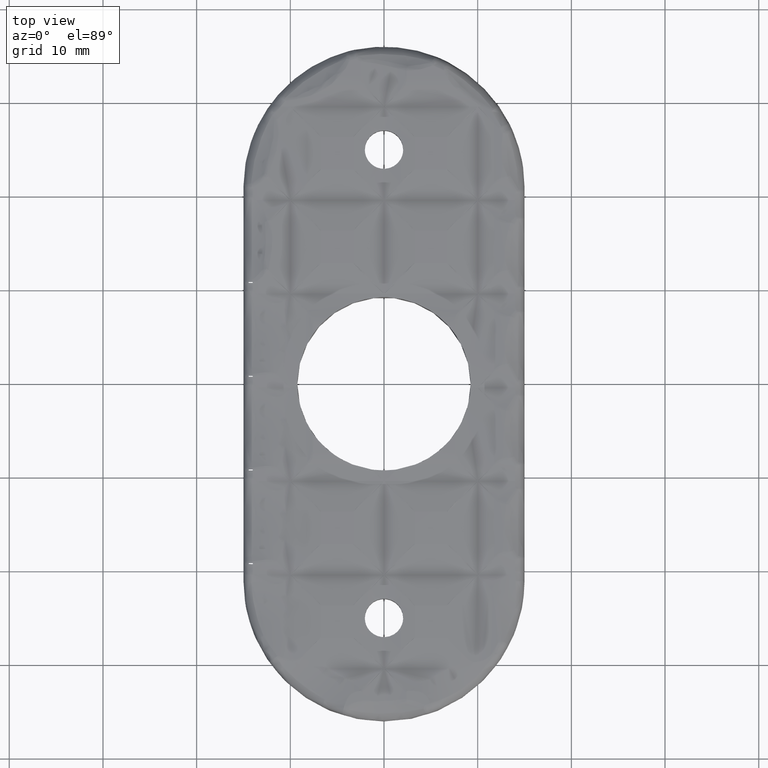
[diagram: clean part render]
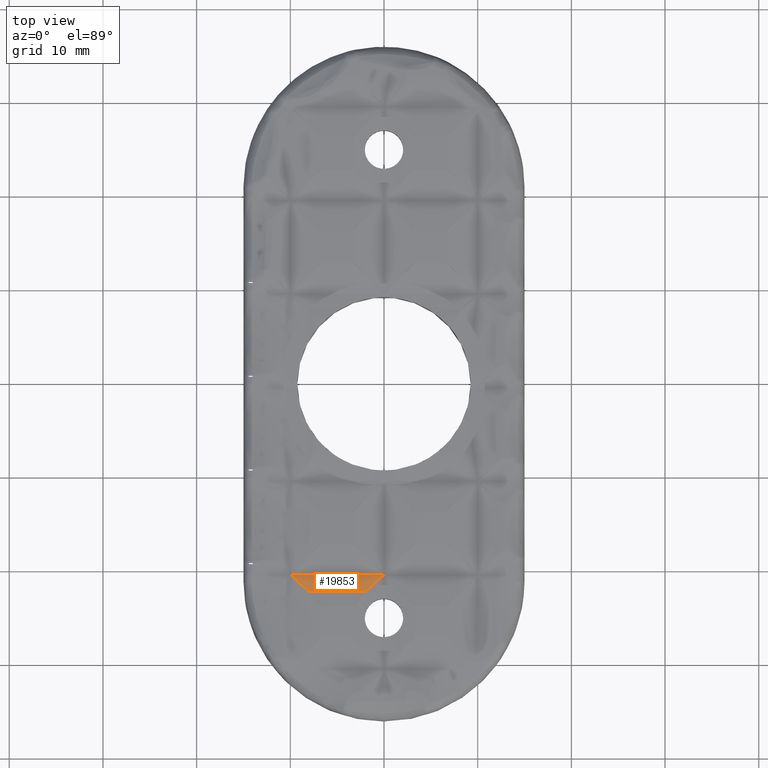
[diagram: same view with one face highlighted and labeled with its STEP entity id]
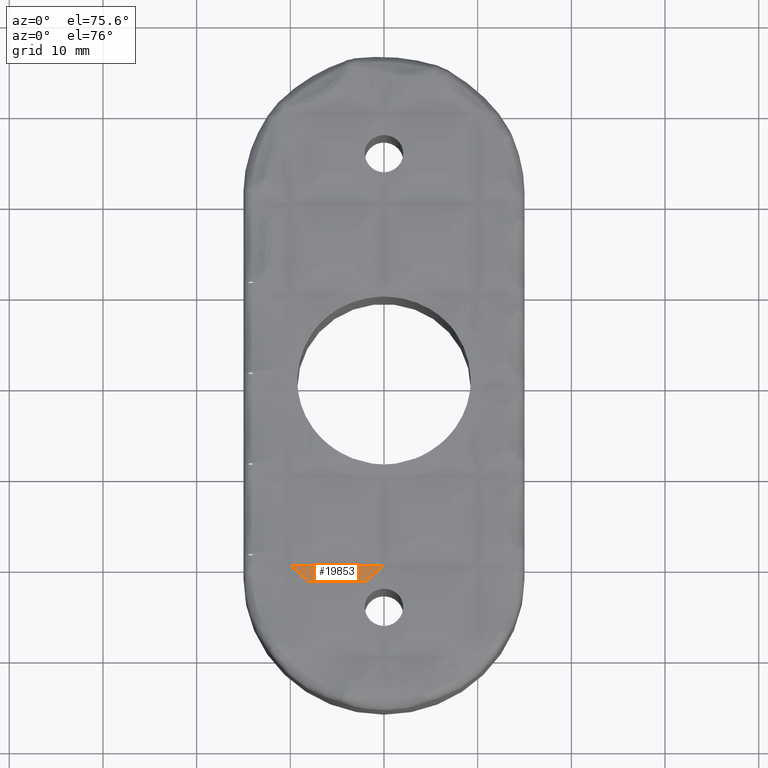
[diagram: same view with one face highlighted and labeled with its STEP entity id]
A machine part, top view. The second image highlights one B-rep face of the part: STEP entity #19853.
A second angle (auxiliary view) of the same face is appended — the face is thin or edge-on in the first view.
In plain terms, the highlighted cylindrical surface (partial cylindrical patch) has radius 11.5625 mm, axis along (1, 0, 0).
Its self-contained STEP definition (entity closure, byte-faithful):
#156 = CARTESIAN_POINT ( 'NONE',  ( -10.00000000000000200, -20.38319608347029500, 3.250000000000002700 ) ) ;
#276 = ORIENTED_EDGE ( 'NONE', *, *, #13982, .F. ) ;
#1016 = EDGE_CURVE ( 'NONE', #10838, #26638, #6061, .T. ) ;
#1047 = CARTESIAN_POINT ( 'NONE',  ( -8.723450933170132900, -21.55812930418497000, 3.294858551025060300 ) ) ;
#1238 = CYLINDRICAL_SURFACE ( 'NONE', #18833, 11.56249999999999600 ) ;
#1384 = ORIENTED_EDGE ( 'NONE', *, *, #8717, .F. ) ;
#2737 = EDGE_CURVE ( 'NONE', #26638, #11903, #17351, .T. ) ;
#3408 = DIRECTION ( 'NONE',  ( 0.0000000000000000000, 0.0000000000000000000, -1.000000000000000000 ) ) ;
#5522 = LINE ( 'NONE', #26380, #11075 ) ;
#6061 = B_SPLINE_CURVE_WITH_KNOTS ( 'NONE', 3,
 ( #26613, #26349, #25884, #26790 ),
 .UNSPECIFIED., .F., .F.,
 ( 4, 4 ),
 ( 0.0000000000000000000, 1.000000000000000000 ),
 .UNSPECIFIED. ) ;
#6910 = VECTOR ( 'NONE', #9602, 1000.000000000000000 ) ;
#7419 = FACE_OUTER_BOUND ( 'NONE', #23646, .T. ) ;
#8717 = EDGE_CURVE ( 'NONE', #11903, #16956, #12720, .T. ) ;
#9602 = DIRECTION ( 'NONE',  ( -1.000000000000000000, -0.0000000000000000000, -0.0000000000000000000 ) ) ;
#10702 = CARTESIAN_POINT ( 'NONE',  ( -8.092568137094430000, -22.13879257528462900, 3.384057971099945200 ) ) ;
#10838 = VERTEX_POINT ( 'NONE', #13287 ) ;
#11075 = VECTOR ( 'NONE', #15858, 1000.000000000000000 ) ;
#11863 = CARTESIAN_POINT ( 'NONE',  ( -10.00000000000000200, -20.38319608347029500, 3.250000000000002700 ) ) ;
#11903 = VERTEX_POINT ( 'NONE', #10702 ) ;
#12720 = B_SPLINE_CURVE_WITH_KNOTS ( 'NONE', 3,
 ( #20175, #1047, #24393, #11863 ),
 .UNSPECIFIED., .F., .F.,
 ( 4, 4 ),
 ( 0.0000000000000000000, 1.000000000000000000 ),
 .UNSPECIFIED. ) ;
#13287 = CARTESIAN_POINT ( 'NONE',  ( 7.746301325243315300E-016, -20.38319608347029500, 3.250000000000002700 ) ) ;
#13982 = EDGE_CURVE ( 'NONE', #16956, #10838, #5522, .T. ) ;
#15858 = DIRECTION ( 'NONE',  ( 1.000000000000000000, 0.0000000000000000000, 0.0000000000000000000 ) ) ;
#16071 = CARTESIAN_POINT ( 'NONE',  ( -15.00000000000000000, -20.38319608347029900, 14.81250000000000000 ) ) ;
#16956 = VERTEX_POINT ( 'NONE', #156 ) ;
#17351 = LINE ( 'NONE', #24212, #6910 ) ;
#18198 = DIRECTION ( 'NONE',  ( 1.000000000000000000, 0.0000000000000000000, 0.0000000000000000000 ) ) ;
#18833 = AXIS2_PLACEMENT_3D ( 'NONE', #16071, #18198, #3408 ) ;
#19853 = ADVANCED_FACE ( 'NONE', ( #7419 ), #1238, .F. ) ;
#20175 = CARTESIAN_POINT ( 'NONE',  ( -8.092568137094430000, -22.13879257528462900, 3.384057971099945200 ) ) ;
#23646 = EDGE_LOOP ( 'NONE', ( #276, #1384, #25105, #24725 ) ) ;
#24212 = CARTESIAN_POINT ( 'NONE',  ( -15.00000000000000000, -22.13879257472836300, 3.384057971014495800 ) ) ;
#24393 = CARTESIAN_POINT ( 'NONE',  ( -9.361715183505634000, -20.97067215834946900, 3.250000000000003600 ) ) ;
#24725 = ORIENTED_EDGE ( 'NONE', *, *, #1016, .F. ) ;
#25105 = ORIENTED_EDGE ( 'NONE', *, *, #2737, .F. ) ;
#25623 = CARTESIAN_POINT ( 'NONE',  ( -1.907431863474973200, -22.13879257472835600, 3.384057971014494000 ) ) ;
#25884 = CARTESIAN_POINT ( 'NONE',  ( -1.276549066832393300, -21.55812930418230500, 3.294858551024651700 ) ) ;
#26349 = CARTESIAN_POINT ( 'NONE',  ( -0.6382848164917839200, -20.97067215835221900, 3.250000000000003600 ) ) ;
#26380 = CARTESIAN_POINT ( 'NONE',  ( -15.00000000000000000, -20.38319608347029900, 3.250000000000002700 ) ) ;
#26613 = CARTESIAN_POINT ( 'NONE',  ( 7.746301325243315300E-016, -20.38319608347029500, 3.250000000000002700 ) ) ;
#26638 = VERTEX_POINT ( 'NONE', #25623 ) ;
#26790 = CARTESIAN_POINT ( 'NONE',  ( -1.907431863474973200, -22.13879257472835600, 3.384057971014494000 ) ) ;